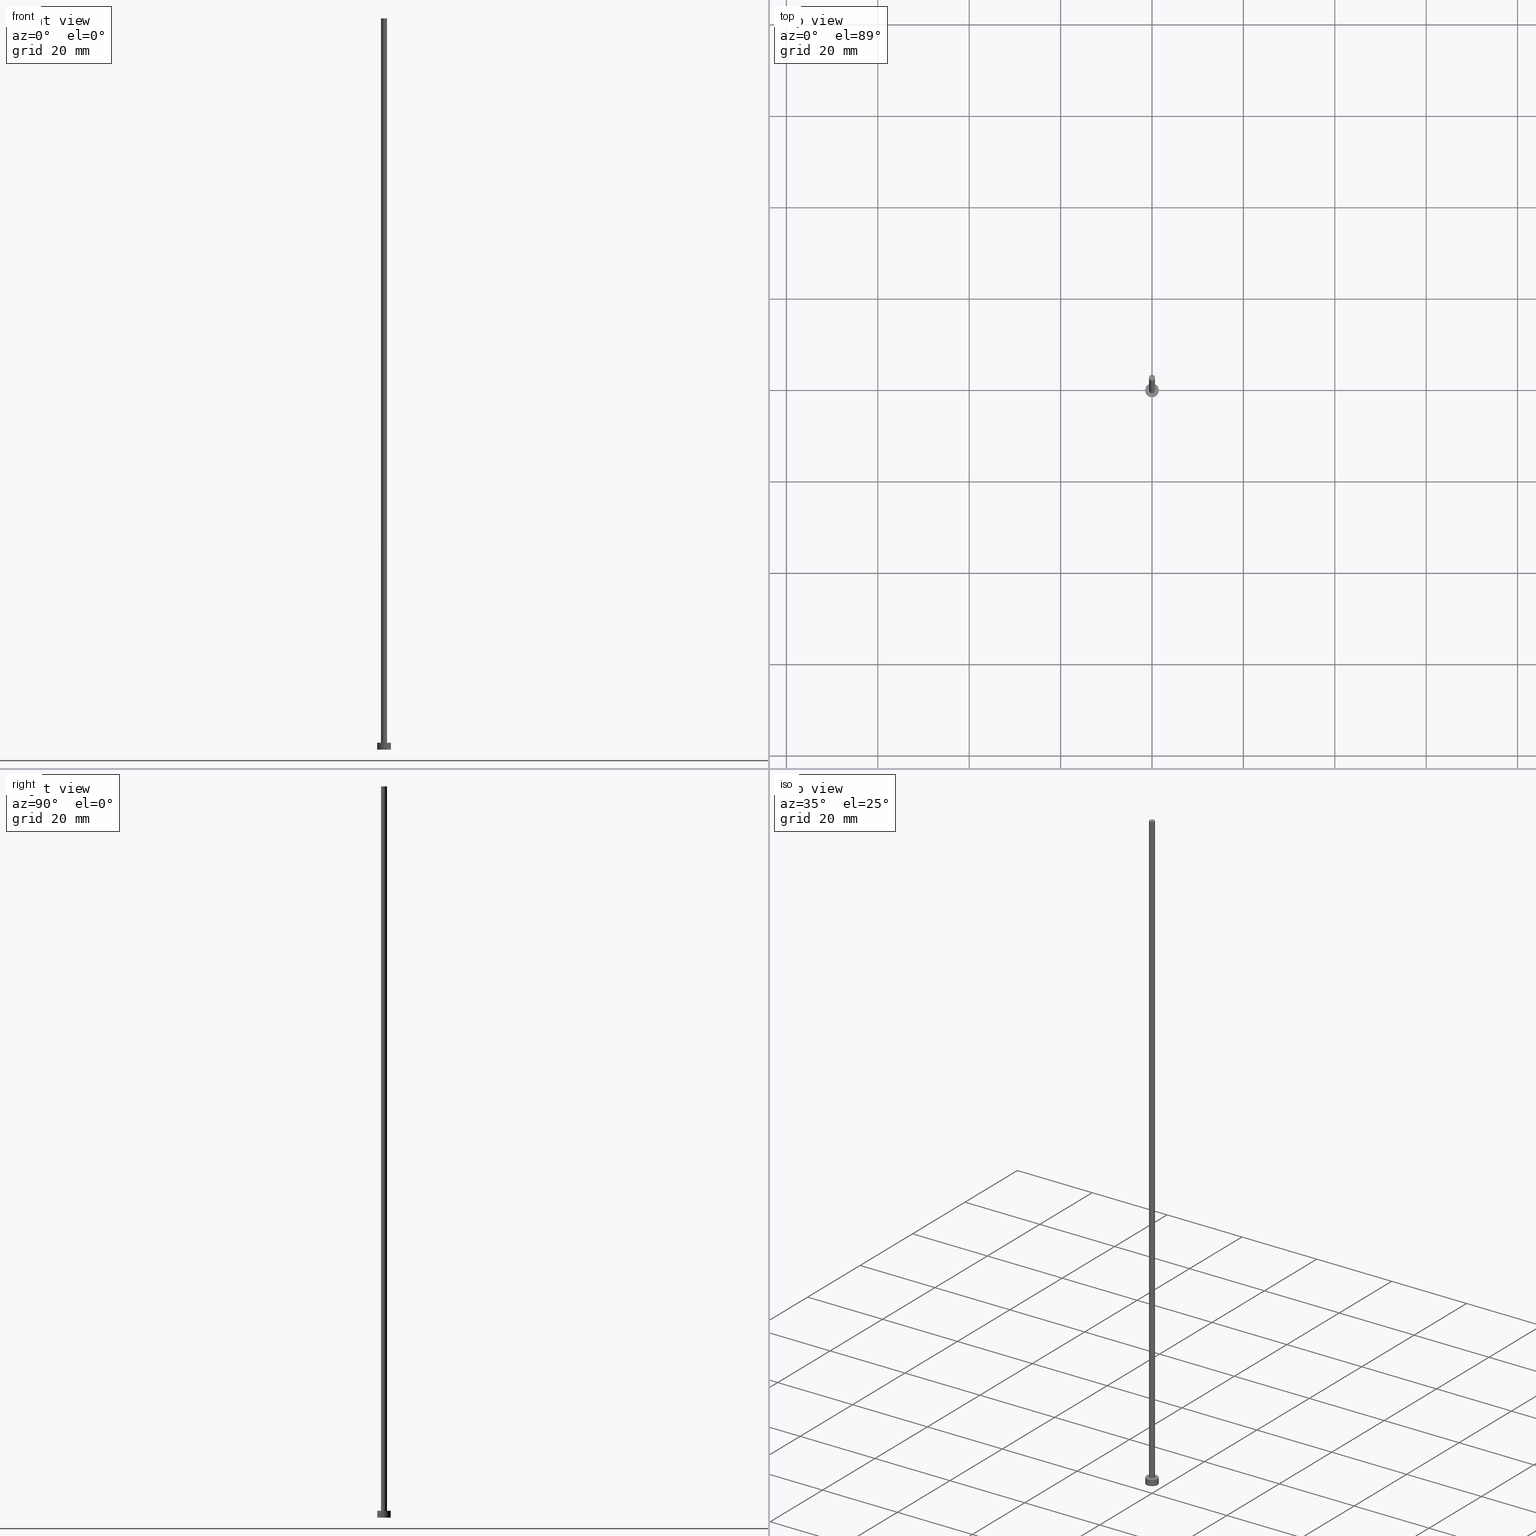
[diagram: canonical four-view strip — front | top / right | iso, engineering-drawing reading convention]
A machine part, canonical four-view strip (front | top / right | iso — engineering-drawing reading convention). The complete STEP part file that produces these views, byte-faithful:
ISO-10303-21;
HEADER;
FILE_DESCRIPTION (( 'STEP AP203' ),
    '1' );
FILE_NAME ('8c0b.STEP',
    '2023-02-13T15:26:00',
    ( '' ),
    ( '' ),
    'SwSTEP 2.0',
    'SolidWorks 2019',
    '' );
FILE_SCHEMA (( 'CONFIG_CONTROL_DESIGN' ));
ENDSEC;

DATA;
#1 =( LENGTH_UNIT ( ) NAMED_UNIT ( * ) SI_UNIT ( .MILLI., .METRE. ) );
#2 = DIRECTION ( 'NONE',  ( -0.000000000000000000, -0.000000000000000000, -1.000000000000000000 ) ) ;
#3 = AXIS2_PLACEMENT_3D ( 'NONE', #73, #173, #88 ) ;
#4 = CARTESIAN_POINT ( 'NONE',  ( -1.500000000000000222, 0.000000000000000000, 1.500000000000000000 ) ) ;
#5 = CC_DESIGN_APPROVAL ( #123, ( #168 ) ) ;
#6 = PERSON_AND_ORGANIZATION_ROLE ( 'creator' ) ;
#7 = PERSON_AND_ORGANIZATION ( #14, #140 ) ;
#8 = VERTEX_POINT ( 'NONE', #207 ) ;
#9 = DATE_AND_TIME ( #167, #115 ) ;
#10 = DIRECTION ( 'NONE',  ( 0.000000000000000000, 0.000000000000000000, 1.000000000000000000 ) ) ;
#11 = CIRCLE ( 'NONE', #86, 0.6500000000000000222 ) ;
#12 = CARTESIAN_POINT ( 'NONE',  ( 1.500000000000000222, 1.836970198721030181E-16, 1.500000000000000000 ) ) ;
#13 = DIRECTION ( 'NONE',  ( 0.000000000000000000, 0.000000000000000000, 1.000000000000000000 ) ) ;
#14 = PERSON ( 'NEUR�EN�', 'NEUR�EN�', 'NEUR�EN�', ('NEUR�EN�'), ('NEUR�EN�'), ('NEUR�EN�') ) ;
#15 = VECTOR ( 'NONE', #235, 1000.000000000000000 ) ;
#16 = CARTESIAN_POINT ( 'NONE',  ( 0.000000000000000000, 0.000000000000000000, 1.500000000000000000 ) ) ;
#17 = EDGE_CURVE ( 'NONE', #93, #122, #194, .T. ) ;
#18 = DIRECTION ( 'NONE',  ( 1.000000000000000000, 0.000000000000000000, 0.000000000000000000 ) ) ;
#19 = APPROVAL_PERSON_ORGANIZATION ( #127, #222, #64 ) ;
#20 = DIRECTION ( 'NONE',  ( -0.000000000000000000, -0.000000000000000000, -1.000000000000000000 ) ) ;
#21 = CARTESIAN_POINT ( 'NONE',  ( 0.000000000000000000, 0.000000000000000000, 160.0000000000000000 ) ) ;
#22 = VERTEX_POINT ( 'NONE', #186 ) ;
#23 =( NAMED_UNIT ( * ) PLANE_ANGLE_UNIT ( ) SI_UNIT ( $, .RADIAN. ) );
#24 = ORIENTED_EDGE ( 'NONE', *, *, #59, .T. ) ;
#25 = PERSON_AND_ORGANIZATION ( #14, #140 ) ;
#26 = VERTEX_POINT ( 'NONE', #185 ) ;
#27 = PLANE ( 'NONE',  #245 ) ;
#28 = PERSON_AND_ORGANIZATION_ROLE ( 'creator' ) ;
#29 = CARTESIAN_POINT ( 'NONE',  ( 0.000000000000000000, 0.000000000000000000, 0.000000000000000000 ) ) ;
#30 = CIRCLE ( 'NONE', #206, 1.500000000000000222 ) ;
#31 = ORIENTED_EDGE ( 'NONE', *, *, #243, .F. ) ;
#32 = VERTEX_POINT ( 'NONE', #131 ) ;
#33 = APPROVAL_STATUS ( 'not_yet_approved' ) ;
#34 = CARTESIAN_POINT ( 'NONE',  ( 0.000000000000000000, 0.000000000000000000, 0.000000000000000000 ) ) ;
#35 = VECTOR ( 'NONE', #39, 1000.000000000000000 ) ;
#36 = AXIS2_PLACEMENT_3D ( 'NONE', #60, #57, #158 ) ;
#37 = UNCERTAINTY_MEASURE_WITH_UNIT (LENGTH_MEASURE( 1.000000000000000082E-05 ), #1, 'distance_accuracy_value', 'NONE');
#38 = COORDINATED_UNIVERSAL_TIME_OFFSET ( 1, 0, .AHEAD. ) ;
#39 = DIRECTION ( 'NONE',  ( -0.000000000000000000, -0.000000000000000000, -1.000000000000000000 ) ) ;
#40 = ORIENTED_EDGE ( 'NONE', *, *, #177, .F. ) ;
#41 = ADVANCED_FACE ( 'NONE', ( #166 ), #248, .T. ) ;
#42 = LOCAL_TIME ( 16, 26, 0.000000000000000000, #232 ) ;
#43 = APPROVAL_STATUS ( 'not_yet_approved' ) ;
#44 = EDGE_CURVE ( 'NONE', #8, #22, #214, .T. ) ;
#45 = DIRECTION ( 'NONE',  ( 1.000000000000000000, 0.000000000000000000, 0.000000000000000000 ) ) ;
#46 = CIRCLE ( 'NONE', #188, 1.500000000000000222 ) ;
#47 = CC_DESIGN_DATE_AND_TIME_ASSIGNMENT ( #65, #183, ( #168 ) ) ;
#48 = VERTEX_POINT ( 'NONE', #208 ) ;
#49 = DIRECTION ( 'NONE',  ( 1.000000000000000000, 0.000000000000000000, 0.000000000000000000 ) ) ;
#50 = DIRECTION ( 'NONE',  ( 0.000000000000000000, 0.000000000000000000, 1.000000000000000000 ) ) ;
#51 = APPLICATION_CONTEXT ( 'configuration controlled 3d designs of mechanical parts and assemblies' ) ;
#52 = FACE_OUTER_BOUND ( 'NONE', #159, .T. ) ;
#53 = CC_DESIGN_PERSON_AND_ORGANIZATION_ASSIGNMENT ( #7, #79, ( #68 ) ) ;
#54 = APPROVAL_PERSON_ORGANIZATION ( #108, #179, #163 ) ;
#55 = CARTESIAN_POINT ( 'NONE',  ( 0.000000000000000000, 0.000000000000000000, 0.000000000000000000 ) ) ;
#56 = AXIS2_PLACEMENT_3D ( 'NONE', #34, #205, #209 ) ;
#57 = DIRECTION ( 'NONE',  ( 0.000000000000000000, 0.000000000000000000, 1.000000000000000000 ) ) ;
#58 = CC_DESIGN_PERSON_AND_ORGANIZATION_ASSIGNMENT ( #25, #139, ( #242 ) ) ;
#59 = EDGE_CURVE ( 'NONE', #32, #8, #105, .T. ) ;
#60 = CARTESIAN_POINT ( 'NONE',  ( 0.000000000000000000, 0.000000000000000000, 0.000000000000000000 ) ) ;
#61 = PERSON_AND_ORGANIZATION ( #14, #140 ) ;
#62 = ADVANCED_FACE ( 'NONE', ( #182, #71 ), #27, .T. ) ;
#63 = ORIENTED_EDGE ( 'NONE', *, *, #203, .F. ) ;
#64 = APPROVAL_ROLE ( '' ) ;
#65 = DATE_AND_TIME ( #247, #189 ) ;
#66 = ORIENTED_EDGE ( 'NONE', *, *, #103, .T. ) ;
#67 = DATE_TIME_ROLE ( 'classification_date' ) ;
#68 = PRODUCT_DEFINITION_FORMATION_WITH_SPECIFIED_SOURCE ( 'LIBOVOLN�', '', #242, .NOT_KNOWN. ) ;
#69 = DIRECTION ( 'NONE',  ( 1.000000000000000000, 0.000000000000000000, -0.000000000000000000 ) ) ;
#70 = CALENDAR_DATE ( 2023, 13, 2 ) ;
#71 = FACE_OUTER_BOUND ( 'NONE', #197, .T. ) ;
#72 = CALENDAR_DATE ( 2023, 13, 2 ) ;
#73 = CARTESIAN_POINT ( 'NONE',  ( 0.000000000000000000, 0.000000000000000000, 160.0000000000000000 ) ) ;
#74 = DIRECTION ( 'NONE',  ( 0.000000000000000000, 0.000000000000000000, 1.000000000000000000 ) ) ;
#75 = PRODUCT_DEFINITION_SHAPE ( 'NONE', 'NONE',  #168 ) ;
#76 = DIRECTION ( 'NONE',  ( 0.000000000000000000, 0.000000000000000000, 1.000000000000000000 ) ) ;
#77 = ORIENTED_EDGE ( 'NONE', *, *, #17, .F. ) ;
#78 = FACE_OUTER_BOUND ( 'NONE', #227, .T. ) ;
#79 = PERSON_AND_ORGANIZATION_ROLE ( 'design_supplier' ) ;
#80 = DATE_AND_TIME ( #233, #157 ) ;
#81 = EDGE_LOOP ( 'NONE', ( #66, #178 ) ) ;
#82 = DIRECTION ( 'NONE',  ( -0.000000000000000000, -0.000000000000000000, -1.000000000000000000 ) ) ;
#83 = SECURITY_CLASSIFICATION_LEVEL ( 'unclassified' ) ;
#84 = CYLINDRICAL_SURFACE ( 'NONE', #134, 1.500000000000000222 ) ;
#85 = EDGE_CURVE ( 'NONE', #22, #8, #128, .T. ) ;
#86 = AXIS2_PLACEMENT_3D ( 'NONE', #16, #192, #18 ) ;
#87 = CC_DESIGN_SECURITY_CLASSIFICATION ( #218, ( #68 ) ) ;
#88 = DIRECTION ( 'NONE',  ( 1.000000000000000000, 0.000000000000000000, 0.000000000000000000 ) ) ;
#89 = AXIS2_PLACEMENT_3D ( 'NONE', #29, #229, #49 ) ;
#90 = CARTESIAN_POINT ( 'NONE',  ( -0.6500000000000000222, 0.000000000000000000, 160.0000000000000000 ) ) ;
#91 = ORIENTED_EDGE ( 'NONE', *, *, #187, .T. ) ;
#92 = CARTESIAN_POINT ( 'NONE',  ( 0.000000000000000000, 0.000000000000000000, 1.500000000000000000 ) ) ;
#93 = VERTEX_POINT ( 'NONE', #109 ) ;
#94 = ADVANCED_FACE ( 'NONE', ( #126 ), #84, .T. ) ;
#95 = AXIS2_PLACEMENT_3D ( 'NONE', #223, #2, #160 ) ;
#96 = CC_DESIGN_APPROVAL ( #222, ( #218 ) ) ;
#97 = EDGE_LOOP ( 'NONE', ( #119, #99 ) ) ;
#98 = CARTESIAN_POINT ( 'NONE',  ( 0.000000000000000000, 0.000000000000000000, 1.500000000000000000 ) ) ;
#99 = ORIENTED_EDGE ( 'NONE', *, *, #44, .F. ) ;
#100 = DIRECTION ( 'NONE',  ( 0.000000000000000000, 0.000000000000000000, 1.000000000000000000 ) ) ;
#101 = COORDINATED_UNIVERSAL_TIME_OFFSET ( 1, 0, .AHEAD. ) ;
#102 = ORIENTED_EDGE ( 'NONE', *, *, #171, .F. ) ;
#103 = EDGE_CURVE ( 'NONE', #122, #93, #234, .T. ) ;
#104 = EDGE_CURVE ( 'NONE', #93, #48, #254, .T. ) ;
#105 = LINE ( 'NONE', #12, #117 ) ;
#106 = CC_DESIGN_PERSON_AND_ORGANIZATION_ASSIGNMENT ( #61, #6, ( #68 ) ) ;
#107 = AXIS2_PLACEMENT_3D ( 'NONE', #92, #241, #176 ) ;
#108 = PERSON_AND_ORGANIZATION ( #14, #140 ) ;
#109 = CARTESIAN_POINT ( 'NONE',  ( 0.6500000000000000222, 7.960204194457795477E-17, 160.0000000000000000 ) ) ;
#110 = APPROVAL_DATE_TIME ( #80, #222 ) ;
#111 = ADVANCED_FACE ( 'NONE', ( #52 ), #137, .T. ) ;
#112 = LINE ( 'NONE', #138, #239 ) ;
#113 = CARTESIAN_POINT ( 'NONE',  ( -0.6500000000000000222, 0.000000000000000000, 1.500000000000000000 ) ) ;
#114 = DIRECTION ( 'NONE',  ( -0.000000000000000000, -0.000000000000000000, -1.000000000000000000 ) ) ;
#115 = LOCAL_TIME ( 16, 26, 0.000000000000000000, #38 ) ;
#116 = FACE_OUTER_BOUND ( 'NONE', #202, .T. ) ;
#117 = VECTOR ( 'NONE', #82, 1000.000000000000000 ) ;
#118 = PLANE ( 'NONE',  #212 ) ;
#119 = ORIENTED_EDGE ( 'NONE', *, *, #85, .F. ) ;
#120 = DIRECTION ( 'NONE',  ( -1.000000000000000000, 0.000000000000000000, 0.000000000000000000 ) ) ;
#121 = CIRCLE ( 'NONE', #107, 0.6500000000000000222 ) ;
#122 = VERTEX_POINT ( 'NONE', #90 ) ;
#123 = APPROVAL ( #43, 'NEUR�EN�' ) ;
#124 = ORIENTED_EDGE ( 'NONE', *, *, #44, .T. ) ;
#125 = CARTESIAN_POINT ( 'NONE',  ( 0.000000000000000000, 0.000000000000000000, 160.0000000000000000 ) ) ;
#126 = FACE_OUTER_BOUND ( 'NONE', #153, .T. ) ;
#127 = PERSON_AND_ORGANIZATION ( #14, #140 ) ;
#128 = CIRCLE ( 'NONE', #56, 1.500000000000000222 ) ;
#129 = ORIENTED_EDGE ( 'NONE', *, *, #171, .T. ) ;
#130 = COORDINATED_UNIVERSAL_TIME_OFFSET ( 1, 0, .AHEAD. ) ;
#131 = CARTESIAN_POINT ( 'NONE',  ( 1.500000000000000222, 1.836970198721030181E-16, 1.500000000000000000 ) ) ;
#132 = DIRECTION ( 'NONE',  ( 1.000000000000000000, 0.000000000000000000, -0.000000000000000000 ) ) ;
#133 = DATE_AND_TIME ( #72, #42 ) ;
#134 = AXIS2_PLACEMENT_3D ( 'NONE', #169, #184, #210 ) ;
#135 = CARTESIAN_POINT ( 'NONE',  ( 0.000000000000000000, 0.000000000000000000, 160.0000000000000000 ) ) ;
#136 = CC_DESIGN_PERSON_AND_ORGANIZATION_ASSIGNMENT ( #165, #28, ( #168 ) ) ;
#137 = CYLINDRICAL_SURFACE ( 'NONE', #170, 0.6500000000000000222 ) ;
#138 = CARTESIAN_POINT ( 'NONE',  ( -0.6500000000000000222, 0.000000000000000000, 160.0000000000000000 ) ) ;
#139 = PERSON_AND_ORGANIZATION_ROLE ( 'design_owner' ) ;
#140 = ORGANIZATION ( 'NEUR�EN�', 'NEUR�EN�', '' ) ;
#141 = VERTEX_POINT ( 'NONE', #113 ) ;
#142 = AXIS2_PLACEMENT_3D ( 'NONE', #250, #50, #69 ) ;
#143 = MECHANICAL_CONTEXT ( 'NONE', #155, 'mechanical' ) ;
#144 = PERSON_AND_ORGANIZATION ( #14, #140 ) ;
#145 = ORIENTED_EDGE ( 'NONE', *, *, #187, .F. ) ;
#146 = EDGE_CURVE ( 'NONE', #26, #32, #30, .T. ) ;
#147 = APPROVAL_STATUS ( 'not_yet_approved' ) ;
#148 =( GEOMETRIC_REPRESENTATION_CONTEXT ( 3 ) GLOBAL_UNCERTAINTY_ASSIGNED_CONTEXT ( ( #37 ) ) GLOBAL_UNIT_ASSIGNED_CONTEXT ( ( #1, #23, #238 ) ) REPRESENTATION_CONTEXT ( 'NONE', 'WORKASPACE' ) );
#149 = ORIENTED_EDGE ( 'NONE', *, *, #243, .T. ) ;
#150 = SHAPE_DEFINITION_REPRESENTATION ( #75, #226 ) ;
#151 = DATE_AND_TIME ( #70, #213 ) ;
#152 = PERSON_AND_ORGANIZATION_ROLE ( 'classification_officer' ) ;
#153 = EDGE_LOOP ( 'NONE', ( #145, #24, #124, #63 ) ) ;
#154 = CARTESIAN_POINT ( 'NONE',  ( 0.6500000000000000222, 7.960204194457795477E-17, 160.0000000000000000 ) ) ;
#155 = APPLICATION_CONTEXT ( 'configuration controlled 3d designs of mechanical parts and assemblies' ) ;
#156 = PRODUCT_RELATED_PRODUCT_CATEGORY ( 'detail', '', ( #242 ) ) ;
#157 = LOCAL_TIME ( 16, 26, 0.000000000000000000, #101 ) ;
#158 = DIRECTION ( 'NONE',  ( 1.000000000000000000, 0.000000000000000000, 0.000000000000000000 ) ) ;
#159 = EDGE_LOOP ( 'NONE', ( #200, #224, #129, #149 ) ) ;
#160 = DIRECTION ( 'NONE',  ( -1.000000000000000000, 0.000000000000000000, 0.000000000000000000 ) ) ;
#161 = ORIENTED_EDGE ( 'NONE', *, *, #146, .T. ) ;
#162 = APPLICATION_PROTOCOL_DEFINITION ( 'international standard', 'config_control_design', 1994, #51 ) ;
#163 = APPROVAL_ROLE ( '' ) ;
#164 = ORIENTED_EDGE ( 'NONE', *, *, #146, .F. ) ;
#165 = PERSON_AND_ORGANIZATION ( #14, #140 ) ;
#166 = FACE_OUTER_BOUND ( 'NONE', #81, .T. ) ;
#167 = CALENDAR_DATE ( 2023, 13, 2 ) ;
#168 = PRODUCT_DEFINITION ( 'NEZN�M�', '', #68, #190 ) ;
#169 = CARTESIAN_POINT ( 'NONE',  ( 0.000000000000000000, 0.000000000000000000, 1.500000000000000000 ) ) ;
#170 = AXIS2_PLACEMENT_3D ( 'NONE', #135, #191, #172 ) ;
#171 = EDGE_CURVE ( 'NONE', #122, #141, #112, .T. ) ;
#172 = DIRECTION ( 'NONE',  ( -1.000000000000000000, 0.000000000000000000, 0.000000000000000000 ) ) ;
#173 = DIRECTION ( 'NONE',  ( 0.000000000000000000, 0.000000000000000000, 1.000000000000000000 ) ) ;
#174 = DIRECTION ( 'NONE',  ( 1.000000000000000000, 0.000000000000000000, -0.000000000000000000 ) ) ;
#175 = ORIENTED_EDGE ( 'NONE', *, *, #177, .T. ) ;
#176 = DIRECTION ( 'NONE',  ( 1.000000000000000000, 0.000000000000000000, 0.000000000000000000 ) ) ;
#177 = EDGE_CURVE ( 'NONE', #48, #141, #11, .T. ) ;
#178 = ORIENTED_EDGE ( 'NONE', *, *, #17, .T. ) ;
#179 = APPROVAL ( #147, 'NEUR�EN�' ) ;
#180 = APPROVAL_DATE_TIME ( #9, #123 ) ;
#181 = ADVANCED_FACE ( 'NONE', ( #78 ), #219, .T. ) ;
#182 = FACE_BOUND ( 'NONE', #246, .T. ) ;
#183 = DATE_TIME_ROLE ( 'creation_date' ) ;
#184 = DIRECTION ( 'NONE',  ( -0.000000000000000000, -0.000000000000000000, -1.000000000000000000 ) ) ;
#185 = CARTESIAN_POINT ( 'NONE',  ( -1.500000000000000222, 0.000000000000000000, 1.500000000000000000 ) ) ;
#186 = CARTESIAN_POINT ( 'NONE',  ( -1.500000000000000222, 0.000000000000000000, 0.000000000000000000 ) ) ;
#187 = EDGE_CURVE ( 'NONE', #32, #26, #46, .T. ) ;
#188 = AXIS2_PLACEMENT_3D ( 'NONE', #98, #100, #201 ) ;
#189 = LOCAL_TIME ( 16, 26, 0.000000000000000000, #130 ) ;
#190 = DESIGN_CONTEXT ( 'detailed design', #51, 'design' ) ;
#191 = DIRECTION ( 'NONE',  ( -0.000000000000000000, -0.000000000000000000, -1.000000000000000000 ) ) ;
#192 = DIRECTION ( 'NONE',  ( 0.000000000000000000, 0.000000000000000000, 1.000000000000000000 ) ) ;
#193 = CYLINDRICAL_SURFACE ( 'NONE', #198, 0.6500000000000000222 ) ;
#194 = CIRCLE ( 'NONE', #220, 0.6500000000000000222 ) ;
#195 = ORIENTED_EDGE ( 'NONE', *, *, #104, .T. ) ;
#196 = LINE ( 'NONE', #4, #35 ) ;
#197 = EDGE_LOOP ( 'NONE', ( #161, #91 ) ) ;
#198 = AXIS2_PLACEMENT_3D ( 'NONE', #21, #20, #120 ) ;
#199 = FACE_OUTER_BOUND ( 'NONE', #97, .T. ) ;
#200 = ORIENTED_EDGE ( 'NONE', *, *, #104, .F. ) ;
#201 = DIRECTION ( 'NONE',  ( 1.000000000000000000, 0.000000000000000000, 0.000000000000000000 ) ) ;
#202 = EDGE_LOOP ( 'NONE', ( #77, #195, #175, #102 ) ) ;
#203 = EDGE_CURVE ( 'NONE', #26, #22, #196, .T. ) ;
#204 = APPROVAL_PERSON_ORGANIZATION ( #144, #123, #216 ) ;
#205 = DIRECTION ( 'NONE',  ( 0.000000000000000000, 0.000000000000000000, 1.000000000000000000 ) ) ;
#206 = AXIS2_PLACEMENT_3D ( 'NONE', #211, #74, #215 ) ;
#207 = CARTESIAN_POINT ( 'NONE',  ( 1.500000000000000222, 1.836970198721030181E-16, 0.000000000000000000 ) ) ;
#208 = CARTESIAN_POINT ( 'NONE',  ( 0.6500000000000000222, 7.960204194457795477E-17, 1.500000000000000000 ) ) ;
#209 = DIRECTION ( 'NONE',  ( 1.000000000000000000, 0.000000000000000000, 0.000000000000000000 ) ) ;
#210 = DIRECTION ( 'NONE',  ( -1.000000000000000000, 0.000000000000000000, 0.000000000000000000 ) ) ;
#211 = CARTESIAN_POINT ( 'NONE',  ( 0.000000000000000000, 0.000000000000000000, 1.500000000000000000 ) ) ;
#212 = AXIS2_PLACEMENT_3D ( 'NONE', #55, #76, #174 ) ;
#213 = LOCAL_TIME ( 16, 26, 0.000000000000000000, #249 ) ;
#214 = CIRCLE ( 'NONE', #89, 1.500000000000000222 ) ;
#215 = DIRECTION ( 'NONE',  ( 1.000000000000000000, 0.000000000000000000, 0.000000000000000000 ) ) ;
#216 = APPROVAL_ROLE ( '' ) ;
#217 = CC_DESIGN_DATE_AND_TIME_ASSIGNMENT ( #133, #67, ( #218 ) ) ;
#218 = SECURITY_CLASSIFICATION ( '', '', #83 ) ;
#219 = CYLINDRICAL_SURFACE ( 'NONE', #95, 1.500000000000000222 ) ;
#220 = AXIS2_PLACEMENT_3D ( 'NONE', #125, #10, #45 ) ;
#221 = ADVANCED_FACE ( 'NONE', ( #199 ), #118, .F. ) ;
#222 = APPROVAL ( #33, 'NEUR�EN�' ) ;
#223 = CARTESIAN_POINT ( 'NONE',  ( 0.000000000000000000, 0.000000000000000000, 1.500000000000000000 ) ) ;
#224 = ORIENTED_EDGE ( 'NONE', *, *, #103, .F. ) ;
#225 = ORIENTED_EDGE ( 'NONE', *, *, #85, .T. ) ;
#226 = ADVANCED_BREP_SHAPE_REPRESENTATION ( '8c0b', ( #252, #36 ), #148 ) ;
#227 = EDGE_LOOP ( 'NONE', ( #240, #164, #244, #225 ) ) ;
#228 = ADVANCED_FACE ( 'NONE', ( #116 ), #193, .T. ) ;
#229 = DIRECTION ( 'NONE',  ( 0.000000000000000000, 0.000000000000000000, 1.000000000000000000 ) ) ;
#230 = APPROVAL_DATE_TIME ( #151, #179 ) ;
#231 = CARTESIAN_POINT ( 'NONE',  ( 0.000000000000000000, 0.000000000000000000, 1.500000000000000000 ) ) ;
#232 = COORDINATED_UNIVERSAL_TIME_OFFSET ( 1, 0, .AHEAD. ) ;
#233 = CALENDAR_DATE ( 2023, 13, 2 ) ;
#234 = CIRCLE ( 'NONE', #3, 0.6500000000000000222 ) ;
#235 = DIRECTION ( 'NONE',  ( -0.000000000000000000, -0.000000000000000000, -1.000000000000000000 ) ) ;
#236 = CLOSED_SHELL ( 'NONE', ( #228, #94, #181, #62, #221, #111, #41 ) ) ;
#237 = APPLICATION_PROTOCOL_DEFINITION ( 'international standard', 'config_control_design', 1994, #155 ) ;
#238 =( NAMED_UNIT ( * ) SI_UNIT ( $, .STERADIAN. ) SOLID_ANGLE_UNIT ( ) );
#239 = VECTOR ( 'NONE', #114, 1000.000000000000000 ) ;
#240 = ORIENTED_EDGE ( 'NONE', *, *, #59, .F. ) ;
#241 = DIRECTION ( 'NONE',  ( 0.000000000000000000, 0.000000000000000000, 1.000000000000000000 ) ) ;
#242 = PRODUCT ( '8c0b', '8c0b', '', ( #143 ) ) ;
#243 = EDGE_CURVE ( 'NONE', #141, #48, #121, .T. ) ;
#244 = ORIENTED_EDGE ( 'NONE', *, *, #203, .T. ) ;
#245 = AXIS2_PLACEMENT_3D ( 'NONE', #231, #13, #132 ) ;
#246 = EDGE_LOOP ( 'NONE', ( #31, #40 ) ) ;
#247 = CALENDAR_DATE ( 2023, 13, 2 ) ;
#248 = PLANE ( 'NONE',  #142 ) ;
#249 = COORDINATED_UNIVERSAL_TIME_OFFSET ( 1, 0, .AHEAD. ) ;
#250 = CARTESIAN_POINT ( 'NONE',  ( 0.000000000000000000, 0.000000000000000000, 160.0000000000000000 ) ) ;
#251 = PERSON_AND_ORGANIZATION ( #14, #140 ) ;
#252 = MANIFOLD_SOLID_BREP ( 'P�idat vysunut�m3', #236 ) ;
#253 = CC_DESIGN_APPROVAL ( #179, ( #68 ) ) ;
#254 = LINE ( 'NONE', #154, #15 ) ;
#255 = CC_DESIGN_PERSON_AND_ORGANIZATION_ASSIGNMENT ( #251, #152, ( #218 ) ) ;
ENDSEC;
END-ISO-10303-21;
